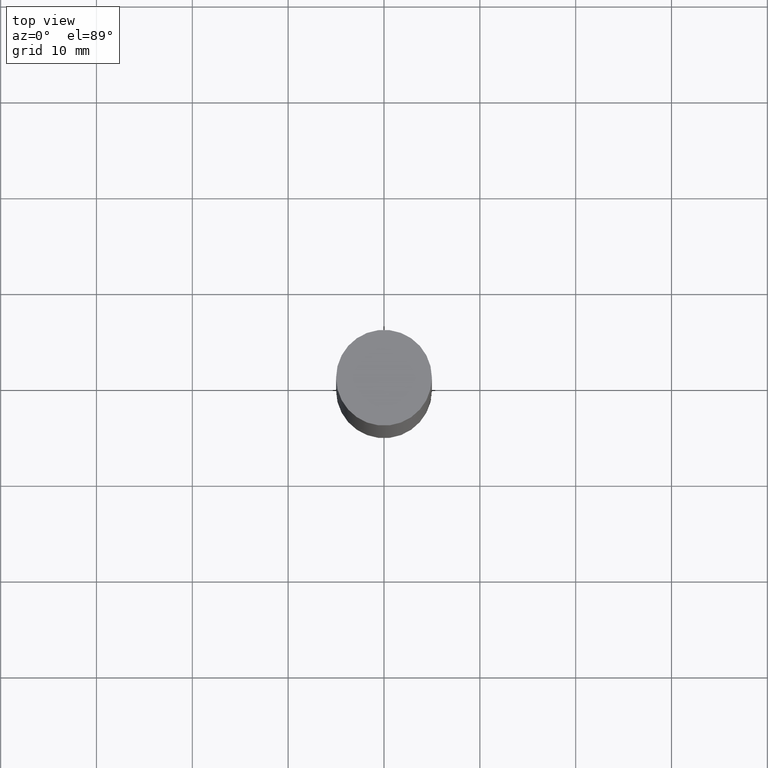
[diagram: clean part render]
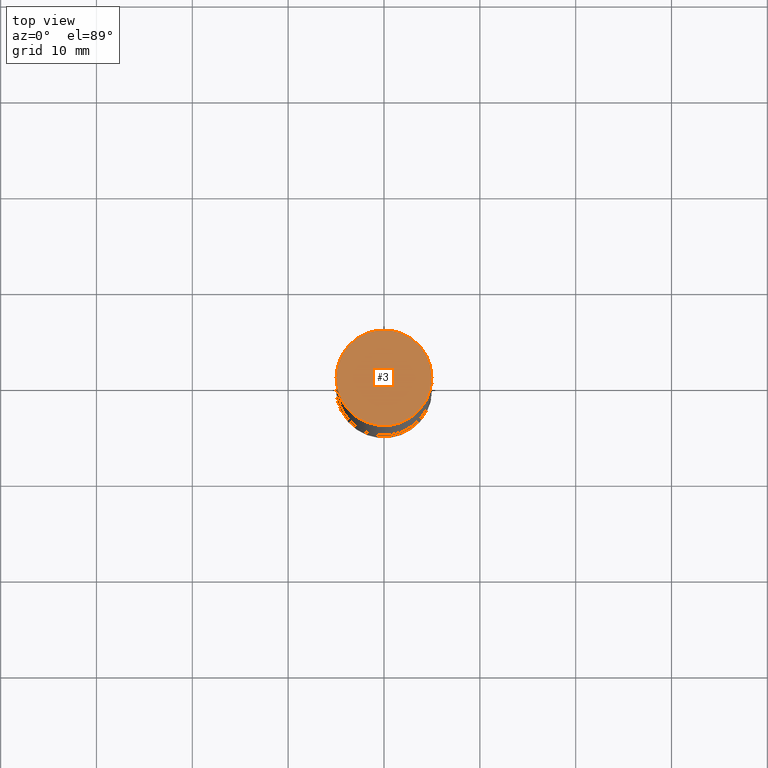
[diagram: same view with one face highlighted and labeled with its STEP entity id]
A machine part, top view. The second image highlights one B-rep face of the part: STEP entity #3.
In plain terms, the highlighted planar face has unit normal (0, 0, 1).
Its self-contained STEP definition (entity closure, byte-faithful):
#3 = ADVANCED_FACE ( 'NONE', ( #597 ), #134, .T. ) ;
#16 = DIRECTION ( 'NONE',  ( -1.000000000000000000, 6.982962677686265922E-15, -9.839502134516470631E-33 ) ) ;
#17 = EDGE_LOOP ( 'NONE', ( #416, #443 ) ) ;
#75 = EDGE_CURVE ( 'NONE', #292, #364, #345, .T. ) ;
#134 = PLANE ( 'NONE',  #424 ) ;
#138 = DIRECTION ( 'NONE',  ( 1.000000000000000000, -6.982962677686265922E-15, 0.000000000000000000 ) ) ;
#169 = CIRCLE ( 'NONE', #232, 0.1968500000000000250 ) ;
#232 = AXIS2_PLACEMENT_3D ( 'NONE', #629, #366, #652 ) ;
#242 = CARTESIAN_POINT ( 'NONE',  ( 1.374596203102613789E-15, 0.1968500000000000250, -5.463695987328526437E-16 ) ) ;
#292 = VERTEX_POINT ( 'NONE', #587 ) ;
#345 = CIRCLE ( 'NONE', #370, 0.1968500000000000250 ) ;
#364 = VERTEX_POINT ( 'NONE', #578 ) ;
#366 = DIRECTION ( 'NONE',  ( 2.445468806185136597E-29, 3.492890411551752677E-15, 1.000000000000000000 ) ) ;
#370 = AXIS2_PLACEMENT_3D ( 'NONE', #390, #608, #138 ) ;
#378 = DIRECTION ( 'NONE',  ( 2.438088387897959769E-29, 3.492890411551753071E-15, 1.000000000000000000 ) ) ;
#390 = CARTESIAN_POINT ( 'NONE',  ( 7.220980290903470182E-29, 2.080354946989631982E-18, 5.463695987328526437E-16 ) ) ;
#416 = ORIENTED_EDGE ( 'NONE', *, *, #440, .T. ) ;
#424 = AXIS2_PLACEMENT_3D ( 'NONE', #242, #378, #16 ) ;
#440 = EDGE_CURVE ( 'NONE', #364, #292, #169, .T. ) ;
#443 = ORIENTED_EDGE ( 'NONE', *, *, #75, .T. ) ;
#578 = CARTESIAN_POINT ( 'NONE',  ( 0.1968500000000000250, -1.372515848155552113E-15, 5.463695987328526437E-16 ) ) ;
#587 = CARTESIAN_POINT ( 'NONE',  ( -0.1968500000000000250, 3.899287883846529545E-16, 5.463695987328561936E-16 ) ) ;
#597 = FACE_OUTER_BOUND ( 'NONE', #17, .T. ) ;
#608 = DIRECTION ( 'NONE',  ( 2.445468806185136597E-29, 3.492890411551752677E-15, 1.000000000000000000 ) ) ;
#629 = CARTESIAN_POINT ( 'NONE',  ( 7.220980290903470182E-29, 2.080354946989631982E-18, 5.463695987328526437E-16 ) ) ;
#652 = DIRECTION ( 'NONE',  ( 1.000000000000000000, -6.982962677686265922E-15, 0.000000000000000000 ) ) ;